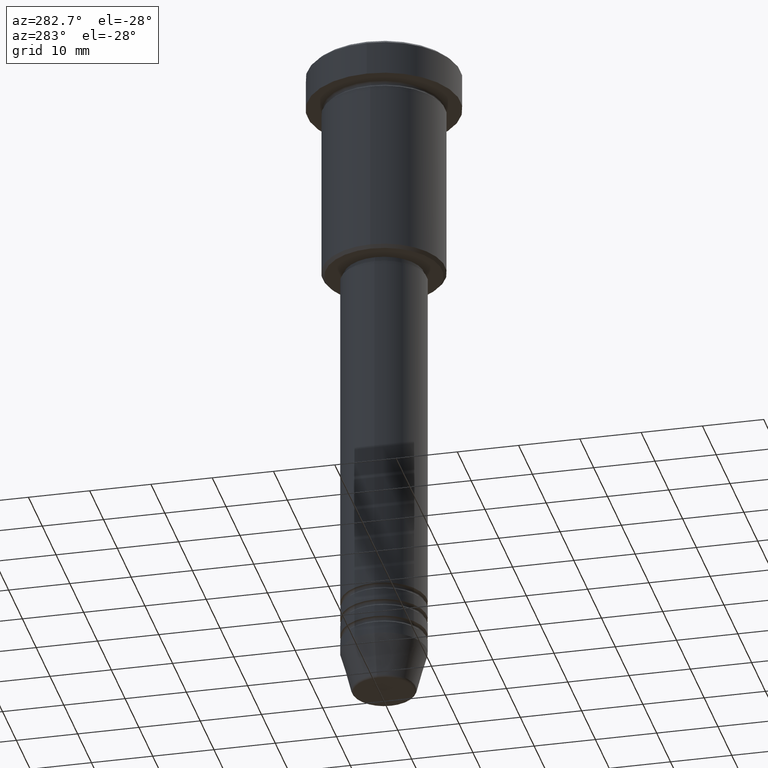
[diagram: clean part render]
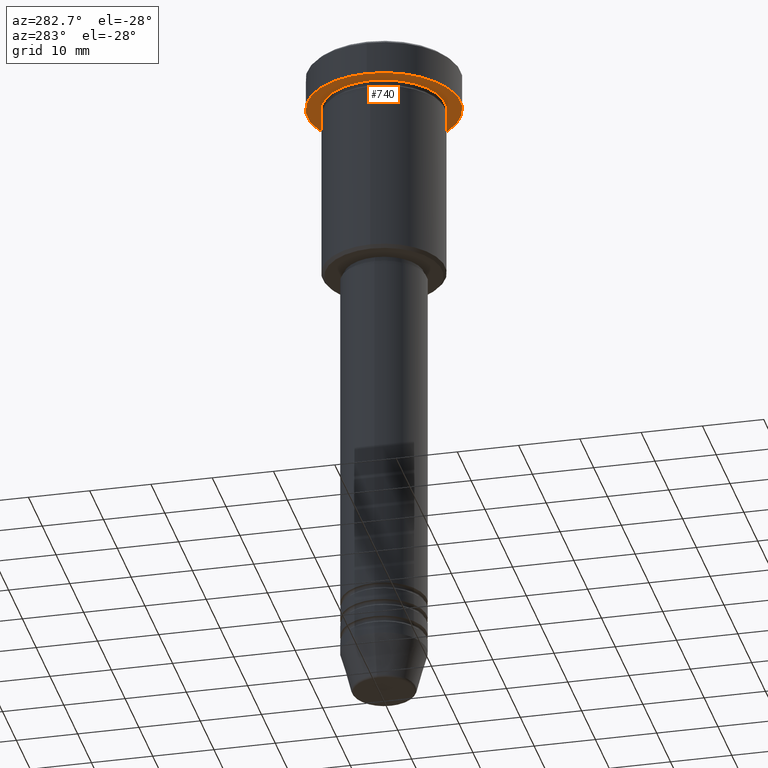
[diagram: same view with one face highlighted and labeled with its STEP entity id]
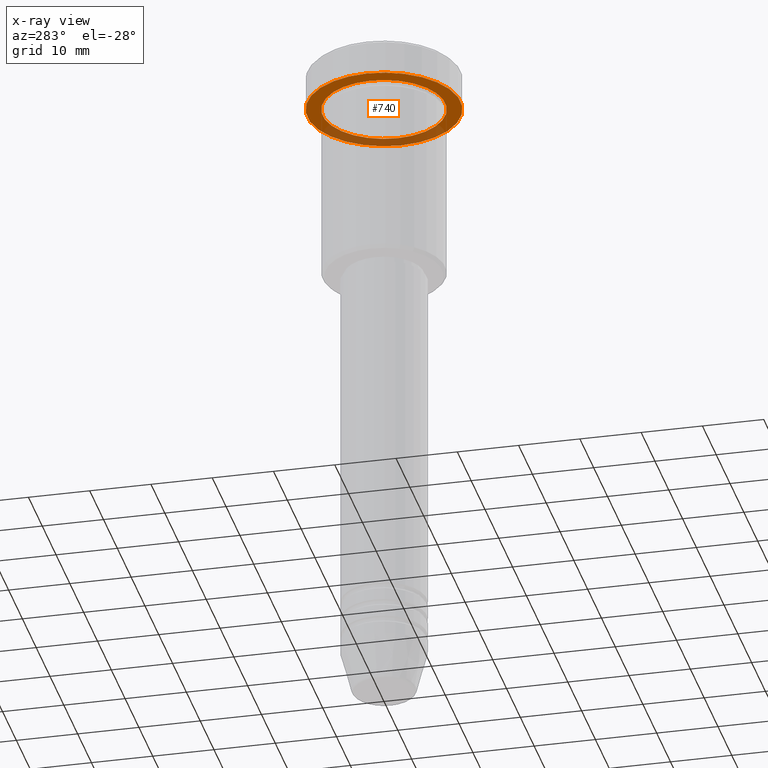
[diagram: x-ray of the same camera — body ghosted, the highlighted face saturated]
A machine part, auxiliary view. The second image highlights one B-rep face of the part: STEP entity #740.
The next image is the same camera in x-ray: the body ghosted, the highlighted face saturated — about 31% of this face is hidden behind the body in this view.
In plain terms, the highlighted planar face has unit normal (0, 0, -1).
Its self-contained STEP definition (entity closure, byte-faithful):
#48 = CARTESIAN_POINT ( 'NONE',  ( 0.000000000000000000, 0.000000000000000000, -5.999999999999996447 ) ) ;
#60 = ORIENTED_EDGE ( 'NONE', *, *, #237, .T. ) ;
#119 = EDGE_CURVE ( 'NONE', #135, #703, #206, .T. ) ;
#133 = CARTESIAN_POINT ( 'NONE',  ( -10.00000000000000000, 0.000000000000000000, -5.999999999999996447 ) ) ;
#135 = VERTEX_POINT ( 'NONE', #133 ) ;
#154 = FACE_OUTER_BOUND ( 'NONE', #228, .T. ) ;
#159 = DIRECTION ( 'NONE',  ( 0.000000000000000000, 0.000000000000000000, -1.000000000000000000 ) ) ;
#181 = AXIS2_PLACEMENT_3D ( 'NONE', #1070, #248, #519 ) ;
#206 = CIRCLE ( 'NONE', #1026, 10.00000000000000000 ) ;
#228 = EDGE_LOOP ( 'NONE', ( #726, #398 ) ) ;
#237 = EDGE_CURVE ( 'NONE', #703, #135, #456, .T. ) ;
#248 = DIRECTION ( 'NONE',  ( -0.000000000000000000, -0.000000000000000000, 1.000000000000000000 ) ) ;
#256 = AXIS2_PLACEMENT_3D ( 'NONE', #1013, #550, #913 ) ;
#323 = EDGE_LOOP ( 'NONE', ( #657, #60 ) ) ;
#353 = CARTESIAN_POINT ( 'NONE',  ( 10.00000000000000000, 1.224646799147353256E-15, -5.999999999999996447 ) ) ;
#398 = ORIENTED_EDGE ( 'NONE', *, *, #1037, .F. ) ;
#454 = EDGE_CURVE ( 'NONE', #778, #943, #702, .T. ) ;
#456 = CIRCLE ( 'NONE', #181, 10.00000000000000000 ) ;
#519 = DIRECTION ( 'NONE',  ( -1.000000000000000000, 0.000000000000000000, 0.000000000000000000 ) ) ;
#523 = DIRECTION ( 'NONE',  ( -1.000000000000000000, 0.000000000000000000, -0.000000000000000000 ) ) ;
#549 = CARTESIAN_POINT ( 'NONE',  ( -12.50000000000000000, 1.530808498934191521E-15, -5.999999999999996447 ) ) ;
#550 = DIRECTION ( 'NONE',  ( -0.000000000000000000, -0.000000000000000000, 1.000000000000000000 ) ) ;
#578 = DIRECTION ( 'NONE',  ( 1.000000000000000000, 0.000000000000000000, 0.000000000000000000 ) ) ;
#619 = CARTESIAN_POINT ( 'NONE',  ( 0.000000000000000000, 12.50000000000000000, -5.999999999999996447 ) ) ;
#657 = ORIENTED_EDGE ( 'NONE', *, *, #119, .T. ) ;
#686 = CARTESIAN_POINT ( 'NONE',  ( 0.000000000000000000, 0.000000000000000000, -5.999999999999996447 ) ) ;
#702 = CIRCLE ( 'NONE', #256, 12.50000000000000000 ) ;
#703 = VERTEX_POINT ( 'NONE', #353 ) ;
#726 = ORIENTED_EDGE ( 'NONE', *, *, #454, .F. ) ;
#740 = ADVANCED_FACE ( 'NONE', ( #1073, #154 ), #1147, .T. ) ;
#768 = DIRECTION ( 'NONE',  ( -0.000000000000000000, -0.000000000000000000, 1.000000000000000000 ) ) ;
#777 = DIRECTION ( 'NONE',  ( -0.000000000000000000, -0.000000000000000000, 1.000000000000000000 ) ) ;
#778 = VERTEX_POINT ( 'NONE', #896 ) ;
#837 = AXIS2_PLACEMENT_3D ( 'NONE', #619, #159, #523 ) ;
#896 = CARTESIAN_POINT ( 'NONE',  ( 12.50000000000000000, 0.000000000000000000, -5.999999999999996447 ) ) ;
#913 = DIRECTION ( 'NONE',  ( 1.000000000000000000, 0.000000000000000000, 0.000000000000000000 ) ) ;
#943 = VERTEX_POINT ( 'NONE', #549 ) ;
#988 = CIRCLE ( 'NONE', #1083, 12.50000000000000000 ) ;
#1013 = CARTESIAN_POINT ( 'NONE',  ( 0.000000000000000000, 0.000000000000000000, -5.999999999999996447 ) ) ;
#1026 = AXIS2_PLACEMENT_3D ( 'NONE', #48, #777, #1045 ) ;
#1037 = EDGE_CURVE ( 'NONE', #943, #778, #988, .T. ) ;
#1045 = DIRECTION ( 'NONE',  ( -1.000000000000000000, 0.000000000000000000, 0.000000000000000000 ) ) ;
#1070 = CARTESIAN_POINT ( 'NONE',  ( 0.000000000000000000, 0.000000000000000000, -5.999999999999996447 ) ) ;
#1073 = FACE_BOUND ( 'NONE', #323, .T. ) ;
#1083 = AXIS2_PLACEMENT_3D ( 'NONE', #686, #768, #578 ) ;
#1147 = PLANE ( 'NONE',  #837 ) ;